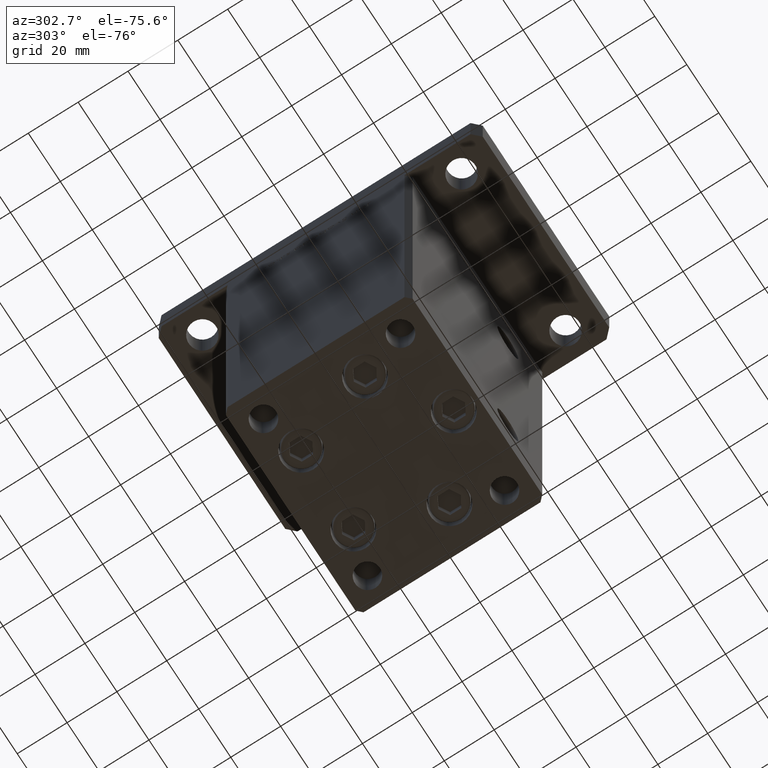
[diagram: clean part render]
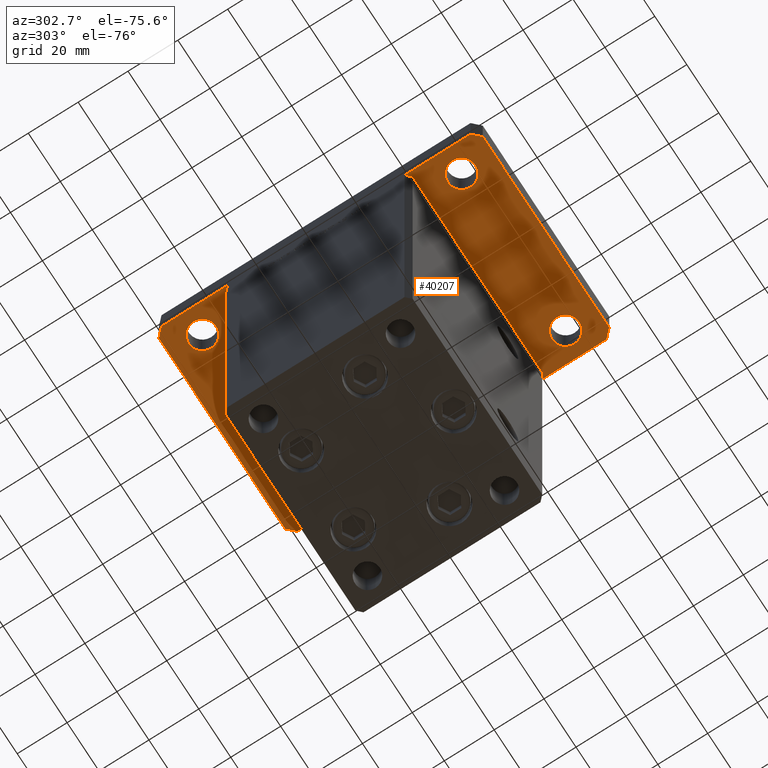
[diagram: same view with one face highlighted and labeled with its STEP entity id]
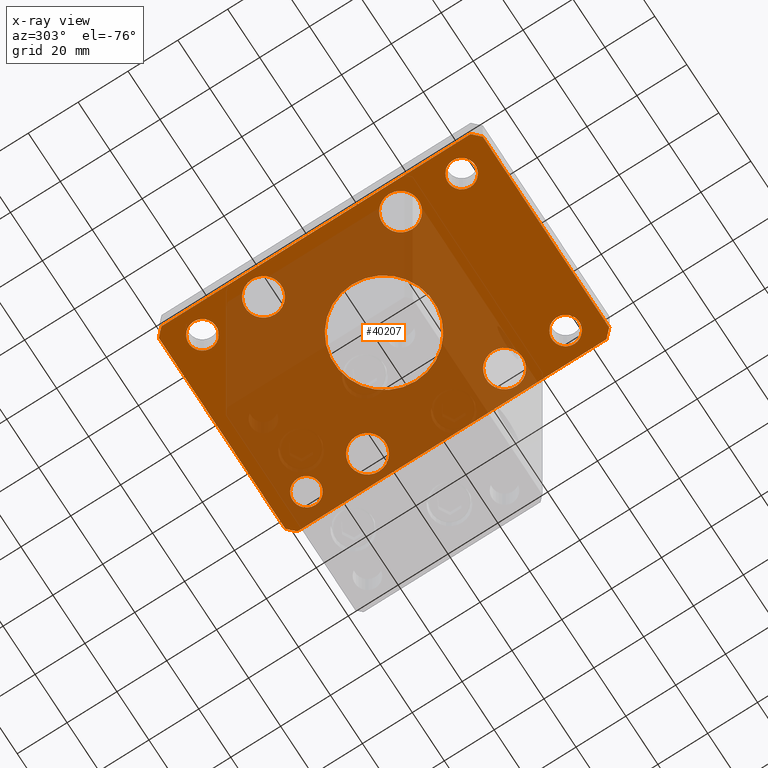
[diagram: x-ray of the same camera — body ghosted, the highlighted face saturated]
A machine part, auxiliary view. The second image highlights one B-rep face of the part: STEP entity #40207.
The next image is the same camera in x-ray: the body ghosted, the highlighted face saturated — about 60% of this face is hidden behind the body in this view.
In plain terms, the highlighted planar face has unit normal (0, 0, 1).
Its self-contained STEP definition (entity closure, byte-faithful):
#686 = CARTESIAN_POINT ( 'NONE',  ( 39.75000000000000000, 27.50000000000000000, 0.000000000000000000 ) ) ;
#1007 = DIRECTION ( 'NONE',  ( 1.000000000000000000, 0.000000000000000000, 0.000000000000000000 ) ) ;
#1504 = AXIS2_PLACEMENT_3D ( 'NONE', #12997, #21661, #42585 ) ;
#1591 = ORIENTED_EDGE ( 'NONE', *, *, #34334, .F. ) ;
#1606 = AXIS2_PLACEMENT_3D ( 'NONE', #30422, #30681, #6262 ) ;
#2394 = CIRCLE ( 'NONE', #11906, 5.499999999999994671 ) ;
#2499 = EDGE_LOOP ( 'NONE', ( #12316, #50723 ) ) ;
#2933 = DIRECTION ( 'NONE',  ( 1.000000000000000000, 0.000000000000000000, 0.000000000000000000 ) ) ;
#3070 = FACE_BOUND ( 'NONE', #39904, .T. ) ;
#3088 = CARTESIAN_POINT ( 'NONE',  ( -42.49999999999999289, -62.00000000000001421, 0.000000000000000000 ) ) ;
#3343 = FACE_BOUND ( 'NONE', #11138, .T. ) ;
#3422 = EDGE_CURVE ( 'NONE', #46968, #50359, #24849, .T. ) ;
#4121 = CARTESIAN_POINT ( 'NONE',  ( -32.49999999999997868, -52.00000000000000711, 0.000000000000000000 ) ) ;
#4267 = EDGE_CURVE ( 'NONE', #50359, #46968, #40538, .T. ) ;
#4404 = DIRECTION ( 'NONE',  ( 1.000000000000000000, 0.000000000000000000, 0.000000000000000000 ) ) ;
#4567 = CARTESIAN_POINT ( 'NONE',  ( 39.75000000000000000, -27.50000000000000000, 0.000000000000000000 ) ) ;
#5064 = VERTEX_POINT ( 'NONE', #43894 ) ;
#5175 = ORIENTED_EDGE ( 'NONE', *, *, #21259, .T. ) ;
#5459 = EDGE_LOOP ( 'NONE', ( #41447, #52587 ) ) ;
#5722 = DIRECTION ( 'NONE',  ( 2.238352872228137677E-16, -1.000000000000000000, 0.000000000000000000 ) ) ;
#5775 = DIRECTION ( 'NONE',  ( 1.000000000000000000, 0.000000000000000000, 0.000000000000000000 ) ) ;
#6067 = DIRECTION ( 'NONE',  ( 1.000000000000000000, 0.000000000000000000, 0.000000000000000000 ) ) ;
#6069 = EDGE_CURVE ( 'NONE', #19471, #51039, #20638, .T. ) ;
#6262 = DIRECTION ( 'NONE',  ( 1.000000000000000000, 0.000000000000000000, 0.000000000000000000 ) ) ;
#6860 = DIRECTION ( 'NONE',  ( 1.000000000000000000, 0.000000000000000000, -0.000000000000000000 ) ) ;
#7351 = EDGE_CURVE ( 'NONE', #45944, #17241, #21759, .T. ) ;
#7383 = EDGE_LOOP ( 'NONE', ( #33563, #40942, #34359, #53300, #35969, #1591, #14848, #28678 ) ) ;
#7681 = DIRECTION ( 'NONE',  ( 1.000000000000000000, 0.000000000000000000, 0.000000000000000000 ) ) ;
#7842 = ORIENTED_EDGE ( 'NONE', *, *, #38950, .T. ) ;
#8658 = CARTESIAN_POINT ( 'NONE',  ( 32.50000000000000000, 51.99999999999999289, 0.000000000000000000 ) ) ;
#9326 = CIRCLE ( 'NONE', #39663, 7.249999999999999112 ) ;
#9594 = CARTESIAN_POINT ( 'NONE',  ( -32.50000000000000000, 52.00000000000000000, 0.000000000000000000 ) ) ;
#9727 = CARTESIAN_POINT ( 'NONE',  ( 32.50000000000000000, -27.50000000000000000, 0.000000000000000000 ) ) ;
#9934 = DIRECTION ( 'NONE',  ( 0.000000000000000000, 0.000000000000000000, -1.000000000000000000 ) ) ;
#10197 = VERTEX_POINT ( 'NONE', #4567 ) ;
#10199 = CARTESIAN_POINT ( 'NONE',  ( 0.000000000000000000, 0.000000000000000000, 0.000000000000000000 ) ) ;
#10951 = DIRECTION ( 'NONE',  ( 0.7071067811865459074, 0.7071067811865491270, 0.000000000000000000 ) ) ;
#11102 = AXIS2_PLACEMENT_3D ( 'NONE', #46322, #13490, #38212 ) ;
#11138 = EDGE_LOOP ( 'NONE', ( #42345, #18440 ) ) ;
#11270 = EDGE_CURVE ( 'NONE', #42142, #47183, #18836, .T. ) ;
#11416 = CARTESIAN_POINT ( 'NONE',  ( -26.99999999999998579, -52.00000000000000711, 0.000000000000000000 ) ) ;
#11486 = LINE ( 'NONE', #3088, #34246 ) ;
#11712 = DIRECTION ( 'NONE',  ( 0.000000000000000000, 0.000000000000000000, 1.000000000000000000 ) ) ;
#11750 = EDGE_CURVE ( 'NONE', #52791, #32815, #38160, .T. ) ;
#11906 = AXIS2_PLACEMENT_3D ( 'NONE', #9594, #26933, #6067 ) ;
#12285 = VERTEX_POINT ( 'NONE', #47188 ) ;
#12316 = ORIENTED_EDGE ( 'NONE', *, *, #11750, .F. ) ;
#12322 = DIRECTION ( 'NONE',  ( -0.7071067811865466846, -0.7071067811865483499, 0.000000000000000000 ) ) ;
#12447 = EDGE_CURVE ( 'NONE', #31933, #13206, #16515, .T. ) ;
#12675 = ORIENTED_EDGE ( 'NONE', *, *, #43939, .T. ) ;
#12997 = CARTESIAN_POINT ( 'NONE',  ( 32.50000000000000000, 51.99999999999999289, 0.000000000000000000 ) ) ;
#13000 = DIRECTION ( 'NONE',  ( 1.000000000000000000, 0.000000000000000000, 0.000000000000000000 ) ) ;
#13206 = VERTEX_POINT ( 'NONE', #42685 ) ;
#13490 = DIRECTION ( 'NONE',  ( 0.000000000000000000, 0.000000000000000000, 1.000000000000000000 ) ) ;
#13586 = VERTEX_POINT ( 'NONE', #32707 ) ;
#13710 = AXIS2_PLACEMENT_3D ( 'NONE', #9727, #21926, #17881 ) ;
#14112 = EDGE_CURVE ( 'NONE', #24486, #41161, #46769, .T. ) ;
#14257 = CIRCLE ( 'NONE', #25497, 7.249999999999999112 ) ;
#14440 = EDGE_LOOP ( 'NONE', ( #18338, #47101 ) ) ;
#14668 = AXIS2_PLACEMENT_3D ( 'NONE', #4121, #53500, #4404 ) ;
#14848 = ORIENTED_EDGE ( 'NONE', *, *, #36151, .F. ) ;
#15169 = CIRCLE ( 'NONE', #26438, 20.00000000000000000 ) ;
#15350 = CARTESIAN_POINT ( 'NONE',  ( -39.50000000000003553, 65.00000000000000000, 0.000000000000000000 ) ) ;
#15407 = VECTOR ( 'NONE', #12322, 1000.000000000000000 ) ;
#15419 = CARTESIAN_POINT ( 'NONE',  ( -25.25000000000000000, -27.50000000000000000, 0.000000000000000000 ) ) ;
#15550 = FACE_BOUND ( 'NONE', #39641, .T. ) ;
#16479 = VECTOR ( 'NONE', #10951, 1000.000000000000114 ) ;
#16515 = CIRCLE ( 'NONE', #24276, 5.499999999999998224 ) ;
#17241 = VERTEX_POINT ( 'NONE', #15350 ) ;
#17441 = EDGE_CURVE ( 'NONE', #18184, #33905, #48713, .T. ) ;
#17548 = ORIENTED_EDGE ( 'NONE', *, *, #37588, .T. ) ;
#17881 = DIRECTION ( 'NONE',  ( 1.000000000000000000, 0.000000000000000000, 0.000000000000000000 ) ) ;
#18184 = VERTEX_POINT ( 'NONE', #32232 ) ;
#18338 = ORIENTED_EDGE ( 'NONE', *, *, #45984, .T. ) ;
#18440 = ORIENTED_EDGE ( 'NONE', *, *, #14112, .T. ) ;
#18508 = LINE ( 'NONE', #43214, #36992 ) ;
#18836 = LINE ( 'NONE', #52223, #16479 ) ;
#18916 = AXIS2_PLACEMENT_3D ( 'NONE', #47959, #27587, #19460 ) ;
#19157 = DIRECTION ( 'NONE',  ( 1.000000000000000000, 1.405345600791337191E-15, 0.000000000000000000 ) ) ;
#19203 = DIRECTION ( 'NONE',  ( 0.000000000000000000, 0.000000000000000000, 1.000000000000000000 ) ) ;
#19335 = FACE_BOUND ( 'NONE', #35314, .T. ) ;
#19460 = DIRECTION ( 'NONE',  ( 1.000000000000000000, 0.000000000000000000, 0.000000000000000000 ) ) ;
#19471 = VERTEX_POINT ( 'NONE', #24823 ) ;
#19786 = VECTOR ( 'NONE', #50812, 1000.000000000000000 ) ;
#19824 = CIRCLE ( 'NONE', #28443, 5.499999999999994671 ) ;
#19956 = ORIENTED_EDGE ( 'NONE', *, *, #4267, .T. ) ;
#20245 = AXIS2_PLACEMENT_3D ( 'NONE', #48660, #27750, #7681 ) ;
#20599 = CARTESIAN_POINT ( 'NONE',  ( -20.00000000000000000, 0.000000000000000000, 0.000000000000000000 ) ) ;
#20638 = CIRCLE ( 'NONE', #11102, 7.249999999999999112 ) ;
#20719 = DIRECTION ( 'NONE',  ( 0.000000000000000000, 1.000000000000000000, 0.000000000000000000 ) ) ;
#20778 = CARTESIAN_POINT ( 'NONE',  ( -38.00000000000000000, 52.00000000000000000, 0.000000000000000000 ) ) ;
#21105 = ORIENTED_EDGE ( 'NONE', *, *, #3422, .T. ) ;
#21259 = EDGE_CURVE ( 'NONE', #51039, #19471, #28873, .T. ) ;
#21263 = LINE ( 'NONE', #25867, #15407 ) ;
#21661 = DIRECTION ( 'NONE',  ( 0.000000000000000000, 0.000000000000000000, 1.000000000000000000 ) ) ;
#21759 = LINE ( 'NONE', #38353, #19786 ) ;
#21880 = ORIENTED_EDGE ( 'NONE', *, *, #37457, .T. ) ;
#21926 = DIRECTION ( 'NONE',  ( 0.000000000000000000, 0.000000000000000000, 1.000000000000000000 ) ) ;
#21993 = VERTEX_POINT ( 'NONE', #30854 ) ;
#22220 = VERTEX_POINT ( 'NONE', #20778 ) ;
#22817 = DIRECTION ( 'NONE',  ( -0.7071067811865417996, 0.7071067811865532349, 0.000000000000000000 ) ) ;
#23312 = CIRCLE ( 'NONE', #14668, 5.499999999999994671 ) ;
#23332 = AXIS2_PLACEMENT_3D ( 'NONE', #46751, #30190, #5775 ) ;
#24253 = CARTESIAN_POINT ( 'NONE',  ( -39.50000000000000000, -65.00000000000000000, 0.000000000000000000 ) ) ;
#24276 = AXIS2_PLACEMENT_3D ( 'NONE', #44990, #24343, #40931 ) ;
#24343 = DIRECTION ( 'NONE',  ( 0.000000000000000000, 0.000000000000000000, 1.000000000000000000 ) ) ;
#24469 = FACE_BOUND ( 'NONE', #14440, .T. ) ;
#24486 = VERTEX_POINT ( 'NONE', #15419 ) ;
#24778 = EDGE_CURVE ( 'NONE', #36157, #42142, #31366, .T. ) ;
#24823 = CARTESIAN_POINT ( 'NONE',  ( 25.25000000000000000, 27.50000000000000000, 0.000000000000000000 ) ) ;
#24849 = CIRCLE ( 'NONE', #1504, 5.499999999999991118 ) ;
#25098 = EDGE_CURVE ( 'NONE', #21993, #36157, #11486, .T. ) ;
#25497 = AXIS2_PLACEMENT_3D ( 'NONE', #46366, #38516, #42842 ) ;
#25867 = CARTESIAN_POINT ( 'NONE',  ( -39.50000000000003553, 65.00000000000000000, 0.000000000000000000 ) ) ;
#26438 = AXIS2_PLACEMENT_3D ( 'NONE', #10199, #9934, #43578 ) ;
#26933 = DIRECTION ( 'NONE',  ( 0.000000000000000000, 0.000000000000000000, 1.000000000000000000 ) ) ;
#27587 = DIRECTION ( 'NONE',  ( 0.000000000000000000, 0.000000000000000000, 1.000000000000000000 ) ) ;
#27734 = PLANE ( 'NONE',  #30203 ) ;
#27750 = DIRECTION ( 'NONE',  ( 0.000000000000000000, 0.000000000000000000, 1.000000000000000000 ) ) ;
#27854 = EDGE_CURVE ( 'NONE', #42984, #21993, #46427, .T. ) ;
#28156 = EDGE_CURVE ( 'NONE', #12285, #34626, #14257, .T. ) ;
#28269 = EDGE_LOOP ( 'NONE', ( #17548, #7842 ) ) ;
#28443 = AXIS2_PLACEMENT_3D ( 'NONE', #47715, #19203, #2933 ) ;
#28522 = DIRECTION ( 'NONE',  ( 1.000000000000000000, 0.000000000000000000, 0.000000000000000000 ) ) ;
#28547 = FACE_OUTER_BOUND ( 'NONE', #7383, .T. ) ;
#28678 = ORIENTED_EDGE ( 'NONE', *, *, #11270, .F. ) ;
#28873 = CIRCLE ( 'NONE', #20245, 7.249999999999999112 ) ;
#29162 = DIRECTION ( 'NONE',  ( 0.000000000000000000, 0.000000000000000000, 1.000000000000000000 ) ) ;
#30190 = DIRECTION ( 'NONE',  ( 0.000000000000000000, 0.000000000000000000, 1.000000000000000000 ) ) ;
#30203 = AXIS2_PLACEMENT_3D ( 'NONE', #49178, #32357, #6860 ) ;
#30422 = CARTESIAN_POINT ( 'NONE',  ( -32.50000000000000000, -27.50000000000000000, 0.000000000000000000 ) ) ;
#30551 = CARTESIAN_POINT ( 'NONE',  ( -42.50000000000002132, 62.00000000000000711, 0.000000000000000000 ) ) ;
#30681 = DIRECTION ( 'NONE',  ( 0.000000000000000000, 0.000000000000000000, 1.000000000000000000 ) ) ;
#30854 = CARTESIAN_POINT ( 'NONE',  ( -42.49999999999999289, -62.00000000000001421, 0.000000000000000000 ) ) ;
#31165 = VERTEX_POINT ( 'NONE', #40375 ) ;
#31366 = LINE ( 'NONE', #47920, #42894 ) ;
#31411 = EDGE_CURVE ( 'NONE', #32815, #52791, #15169, .T. ) ;
#31546 = FACE_BOUND ( 'NONE', #5459, .T. ) ;
#31933 = VERTEX_POINT ( 'NONE', #48640 ) ;
#32232 = CARTESIAN_POINT ( 'NONE',  ( -37.99999999999997868, -52.00000000000000711, 0.000000000000000000 ) ) ;
#32357 = DIRECTION ( 'NONE',  ( 0.000000000000000000, 0.000000000000000000, 1.000000000000000000 ) ) ;
#32707 = CARTESIAN_POINT ( 'NONE',  ( 42.50000000000000000, 62.00000000000000711, 0.000000000000000000 ) ) ;
#32815 = VERTEX_POINT ( 'NONE', #33437 ) ;
#32865 = AXIS2_PLACEMENT_3D ( 'NONE', #38437, #46552, #1007 ) ;
#33054 = ORIENTED_EDGE ( 'NONE', *, *, #28156, .T. ) ;
#33398 = DIRECTION ( 'NONE',  ( 0.000000000000000000, 0.000000000000000000, -1.000000000000000000 ) ) ;
#33437 = CARTESIAN_POINT ( 'NONE',  ( 20.00000000000000000, 2.449293598294706513E-15, 0.000000000000000000 ) ) ;
#33563 = ORIENTED_EDGE ( 'NONE', *, *, #24778, .F. ) ;
#33905 = VERTEX_POINT ( 'NONE', #11416 ) ;
#34079 = CARTESIAN_POINT ( 'NONE',  ( 39.50000000000002842, 65.00000000000002842, 0.000000000000000000 ) ) ;
#34246 = VECTOR ( 'NONE', #43541, 1000.000000000000000 ) ;
#34334 = EDGE_CURVE ( 'NONE', #13586, #45944, #18508, .T. ) ;
#34359 = ORIENTED_EDGE ( 'NONE', *, *, #27854, .F. ) ;
#34562 = CARTESIAN_POINT ( 'NONE',  ( 27.00000000000001421, 51.99999999999999289, 0.000000000000000000 ) ) ;
#34626 = VERTEX_POINT ( 'NONE', #52089 ) ;
#34828 = EDGE_LOOP ( 'NONE', ( #19956, #21105 ) ) ;
#35314 = EDGE_LOOP ( 'NONE', ( #35412, #21880 ) ) ;
#35354 = CIRCLE ( 'NONE', #13710, 7.249999999999999112 ) ;
#35412 = ORIENTED_EDGE ( 'NONE', *, *, #52991, .T. ) ;
#35969 = ORIENTED_EDGE ( 'NONE', *, *, #7351, .F. ) ;
#36151 = EDGE_CURVE ( 'NONE', #47183, #13586, #53299, .T. ) ;
#36157 = VERTEX_POINT ( 'NONE', #24253 ) ;
#36992 = VECTOR ( 'NONE', #22817, 1000.000000000000000 ) ;
#37457 = EDGE_CURVE ( 'NONE', #31165, #22220, #2394, .T. ) ;
#37492 = CARTESIAN_POINT ( 'NONE',  ( 0.000000000000000000, 0.000000000000000000, 0.000000000000000000 ) ) ;
#37588 = EDGE_CURVE ( 'NONE', #5064, #10197, #9326, .T. ) ;
#38160 = CIRCLE ( 'NONE', #50264, 20.00000000000000000 ) ;
#38212 = DIRECTION ( 'NONE',  ( 1.000000000000000000, 0.000000000000000000, 0.000000000000000000 ) ) ;
#38353 = CARTESIAN_POINT ( 'NONE',  ( 39.50000000000002842, 65.00000000000002842, 0.000000000000000000 ) ) ;
#38437 = CARTESIAN_POINT ( 'NONE',  ( 32.49999999999997868, -52.00000000000000711, 0.000000000000000000 ) ) ;
#38509 = CARTESIAN_POINT ( 'NONE',  ( 37.99999999999999289, 51.99999999999999289, 0.000000000000000000 ) ) ;
#38516 = DIRECTION ( 'NONE',  ( 0.000000000000000000, 0.000000000000000000, 1.000000000000000000 ) ) ;
#38639 = EDGE_CURVE ( 'NONE', #41161, #24486, #39707, .T. ) ;
#38835 = CARTESIAN_POINT ( 'NONE',  ( -42.50000000000002132, 62.00000000000000711, 0.000000000000000000 ) ) ;
#38950 = EDGE_CURVE ( 'NONE', #10197, #5064, #35354, .T. ) ;
#39641 = EDGE_LOOP ( 'NONE', ( #33054, #12675 ) ) ;
#39663 = AXIS2_PLACEMENT_3D ( 'NONE', #49154, #11712, #28522 ) ;
#39707 = CIRCLE ( 'NONE', #1606, 7.249999999999999112 ) ;
#39904 = EDGE_LOOP ( 'NONE', ( #46246, #5175 ) ) ;
#40207 = ADVANCED_FACE ( 'NONE', ( #40801, #28547, #31546, #45122, #19335, #3343, #40252, #3070, #15550, #24469 ), #27734, .F. ) ;
#40252 = FACE_BOUND ( 'NONE', #28269, .T. ) ;
#40375 = CARTESIAN_POINT ( 'NONE',  ( -27.00000000000000711, 52.00000000000000000, 0.000000000000000000 ) ) ;
#40538 = CIRCLE ( 'NONE', #45719, 5.499999999999991118 ) ;
#40801 = FACE_BOUND ( 'NONE', #2499, .T. ) ;
#40874 = DIRECTION ( 'NONE',  ( 1.000000000000000000, 0.000000000000000000, 0.000000000000000000 ) ) ;
#40931 = DIRECTION ( 'NONE',  ( 1.000000000000000000, 0.000000000000000000, 0.000000000000000000 ) ) ;
#40942 = ORIENTED_EDGE ( 'NONE', *, *, #25098, .F. ) ;
#41161 = VERTEX_POINT ( 'NONE', #47257 ) ;
#41447 = ORIENTED_EDGE ( 'NONE', *, *, #17441, .T. ) ;
#42142 = VERTEX_POINT ( 'NONE', #45696 ) ;
#42345 = ORIENTED_EDGE ( 'NONE', *, *, #38639, .T. ) ;
#42585 = DIRECTION ( 'NONE',  ( 1.000000000000000000, 0.000000000000000000, 0.000000000000000000 ) ) ;
#42619 = EDGE_CURVE ( 'NONE', #33905, #18184, #23312, .T. ) ;
#42685 = CARTESIAN_POINT ( 'NONE',  ( 26.99999999999998579, -52.00000000000000711, 0.000000000000000000 ) ) ;
#42842 = DIRECTION ( 'NONE',  ( 1.000000000000000000, 0.000000000000000000, 0.000000000000000000 ) ) ;
#42850 = VECTOR ( 'NONE', #5722, 1000.000000000000000 ) ;
#42894 = VECTOR ( 'NONE', #19157, 1000.000000000000000 ) ;
#42984 = VERTEX_POINT ( 'NONE', #30551 ) ;
#43214 = CARTESIAN_POINT ( 'NONE',  ( 42.50000000000000000, 62.00000000000000711, 0.000000000000000000 ) ) ;
#43541 = DIRECTION ( 'NONE',  ( 0.7071067811865483499, -0.7071067811865466846, 0.000000000000000000 ) ) ;
#43578 = DIRECTION ( 'NONE',  ( -1.000000000000000000, 0.000000000000000000, 0.000000000000000000 ) ) ;
#43894 = CARTESIAN_POINT ( 'NONE',  ( 25.25000000000000000, -27.50000000000000000, 0.000000000000000000 ) ) ;
#43939 = EDGE_CURVE ( 'NONE', #34626, #12285, #53596, .T. ) ;
#44990 = CARTESIAN_POINT ( 'NONE',  ( 32.49999999999997868, -52.00000000000000711, 0.000000000000000000 ) ) ;
#45122 = FACE_BOUND ( 'NONE', #34828, .T. ) ;
#45244 = AXIS2_PLACEMENT_3D ( 'NONE', #45459, #29162, #40874 ) ;
#45459 = CARTESIAN_POINT ( 'NONE',  ( -32.49999999999997868, -52.00000000000000711, 0.000000000000000000 ) ) ;
#45696 = CARTESIAN_POINT ( 'NONE',  ( 39.50000000000001421, -64.99999999999988631, 0.000000000000000000 ) ) ;
#45719 = AXIS2_PLACEMENT_3D ( 'NONE', #8658, #49906, #13000 ) ;
#45944 = VERTEX_POINT ( 'NONE', #34079 ) ;
#45984 = EDGE_CURVE ( 'NONE', #13206, #31933, #53682, .T. ) ;
#46246 = ORIENTED_EDGE ( 'NONE', *, *, #6069, .T. ) ;
#46322 = CARTESIAN_POINT ( 'NONE',  ( 32.50000000000000000, 27.50000000000000000, 0.000000000000000000 ) ) ;
#46366 = CARTESIAN_POINT ( 'NONE',  ( -32.50000000000000711, 27.50000000000000000, 0.000000000000000000 ) ) ;
#46427 = LINE ( 'NONE', #38835, #42850 ) ;
#46552 = DIRECTION ( 'NONE',  ( 0.000000000000000000, 0.000000000000000000, 1.000000000000000000 ) ) ;
#46751 = CARTESIAN_POINT ( 'NONE',  ( -32.50000000000000000, -27.50000000000000000, 0.000000000000000000 ) ) ;
#46769 = CIRCLE ( 'NONE', #23332, 7.249999999999999112 ) ;
#46968 = VERTEX_POINT ( 'NONE', #38509 ) ;
#47101 = ORIENTED_EDGE ( 'NONE', *, *, #12447, .T. ) ;
#47183 = VERTEX_POINT ( 'NONE', #51116 ) ;
#47188 = CARTESIAN_POINT ( 'NONE',  ( -39.75000000000000711, 27.50000000000000000, 0.000000000000000000 ) ) ;
#47257 = CARTESIAN_POINT ( 'NONE',  ( -39.75000000000000000, -27.50000000000000000, 0.000000000000000000 ) ) ;
#47715 = CARTESIAN_POINT ( 'NONE',  ( -32.50000000000000000, 52.00000000000000000, 0.000000000000000000 ) ) ;
#47920 = CARTESIAN_POINT ( 'NONE',  ( -39.50000000000000000, -65.00000000000000000, 0.000000000000000000 ) ) ;
#47959 = CARTESIAN_POINT ( 'NONE',  ( -32.50000000000000711, 27.50000000000000000, 0.000000000000000000 ) ) ;
#48640 = CARTESIAN_POINT ( 'NONE',  ( 37.99999999999997868, -52.00000000000000711, 0.000000000000000000 ) ) ;
#48660 = CARTESIAN_POINT ( 'NONE',  ( 32.50000000000000000, 27.50000000000000000, 0.000000000000000000 ) ) ;
#48713 = CIRCLE ( 'NONE', #45244, 5.499999999999994671 ) ;
#49154 = CARTESIAN_POINT ( 'NONE',  ( 32.50000000000000000, -27.50000000000000000, 0.000000000000000000 ) ) ;
#49178 = CARTESIAN_POINT ( 'NONE',  ( 0.000000000000000000, 0.000000000000000000, 0.000000000000000000 ) ) ;
#49770 = CARTESIAN_POINT ( 'NONE',  ( 42.50000000000000000, -61.99999999999988631, 0.000000000000000000 ) ) ;
#49906 = DIRECTION ( 'NONE',  ( 0.000000000000000000, 0.000000000000000000, 1.000000000000000000 ) ) ;
#49962 = DIRECTION ( 'NONE',  ( -1.000000000000000000, 0.000000000000000000, 0.000000000000000000 ) ) ;
#50264 = AXIS2_PLACEMENT_3D ( 'NONE', #37492, #33398, #49962 ) ;
#50359 = VERTEX_POINT ( 'NONE', #34562 ) ;
#50723 = ORIENTED_EDGE ( 'NONE', *, *, #31411, .F. ) ;
#50812 = DIRECTION ( 'NONE',  ( -1.000000000000000000, -3.513364001978340512E-16, 0.000000000000000000 ) ) ;
#51039 = VERTEX_POINT ( 'NONE', #686 ) ;
#51050 = EDGE_CURVE ( 'NONE', #17241, #42984, #21263, .T. ) ;
#51116 = CARTESIAN_POINT ( 'NONE',  ( 42.50000000000000000, -61.99999999999988631, 0.000000000000000000 ) ) ;
#51754 = VECTOR ( 'NONE', #20719, 1000.000000000000000 ) ;
#52089 = CARTESIAN_POINT ( 'NONE',  ( -25.25000000000000711, 27.50000000000000000, 0.000000000000000000 ) ) ;
#52223 = CARTESIAN_POINT ( 'NONE',  ( 39.50000000000001421, -64.99999999999988631, 0.000000000000000000 ) ) ;
#52587 = ORIENTED_EDGE ( 'NONE', *, *, #42619, .T. ) ;
#52791 = VERTEX_POINT ( 'NONE', #20599 ) ;
#52991 = EDGE_CURVE ( 'NONE', #22220, #31165, #19824, .T. ) ;
#53299 = LINE ( 'NONE', #49770, #51754 ) ;
#53300 = ORIENTED_EDGE ( 'NONE', *, *, #51050, .F. ) ;
#53500 = DIRECTION ( 'NONE',  ( 0.000000000000000000, 0.000000000000000000, 1.000000000000000000 ) ) ;
#53596 = CIRCLE ( 'NONE', #18916, 7.249999999999999112 ) ;
#53682 = CIRCLE ( 'NONE', #32865, 5.499999999999998224 ) ;